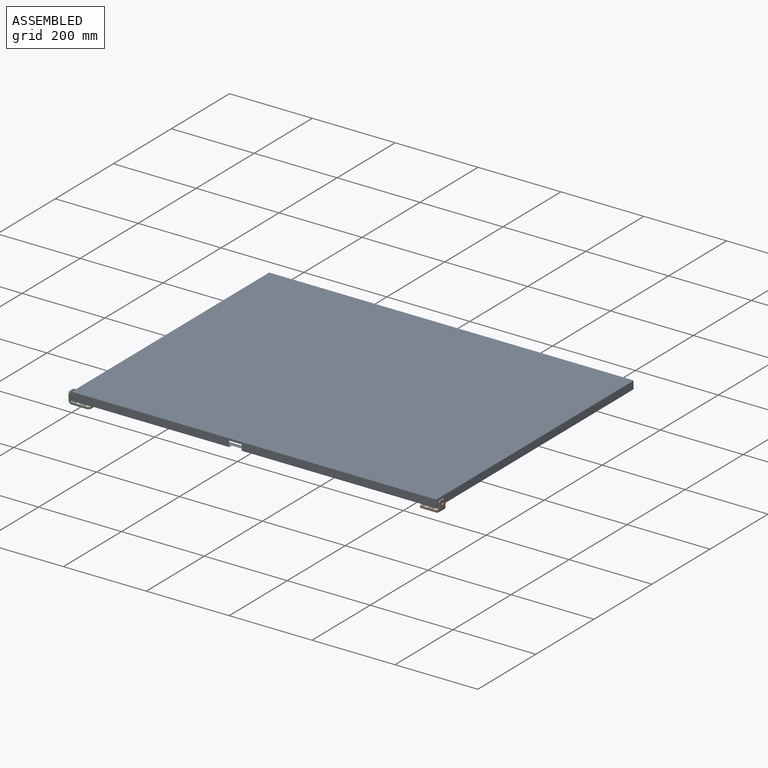
[diagram: assembled view]
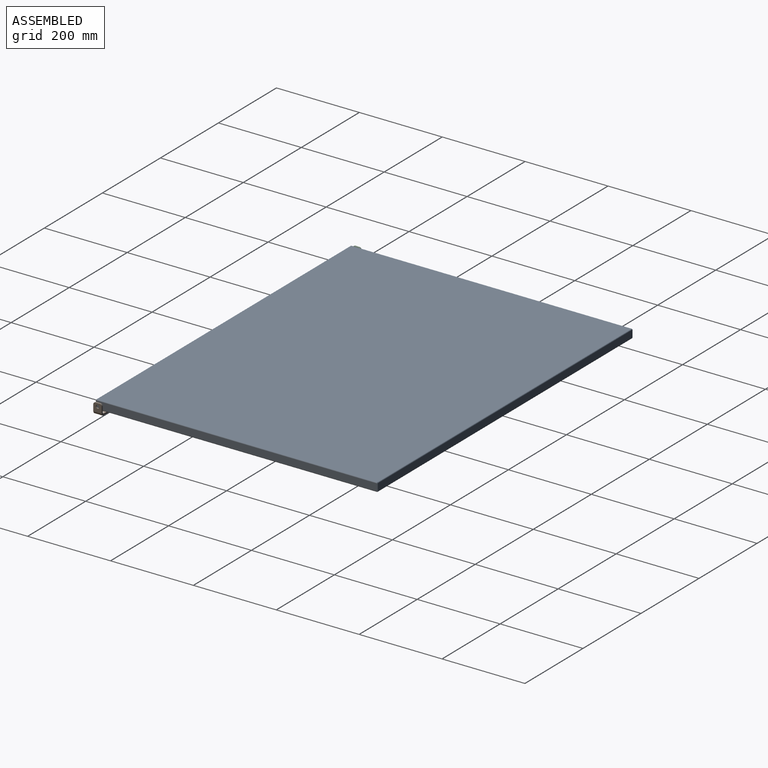
[diagram: assembled view, second angle]
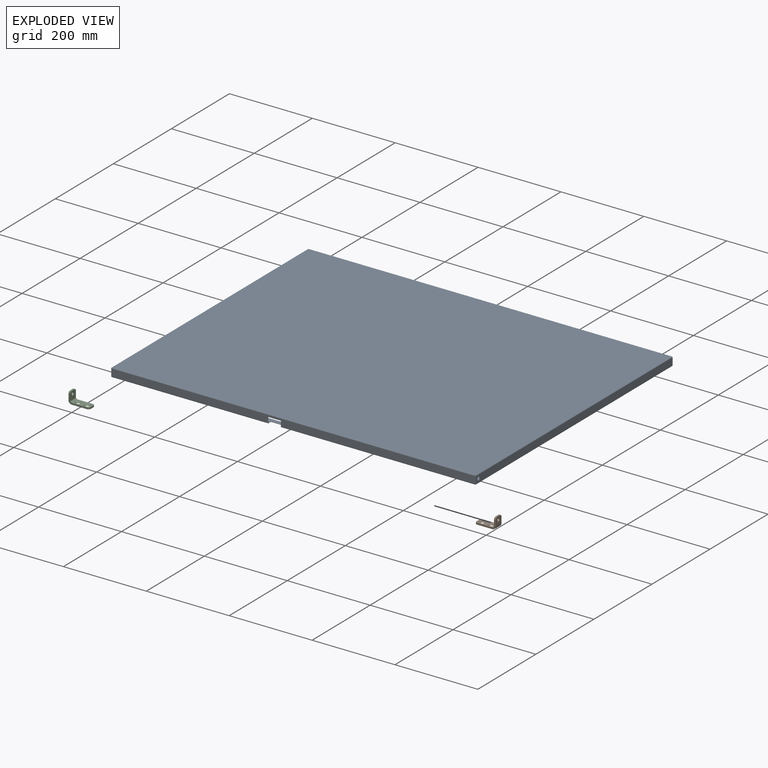
[diagram: exploded view]
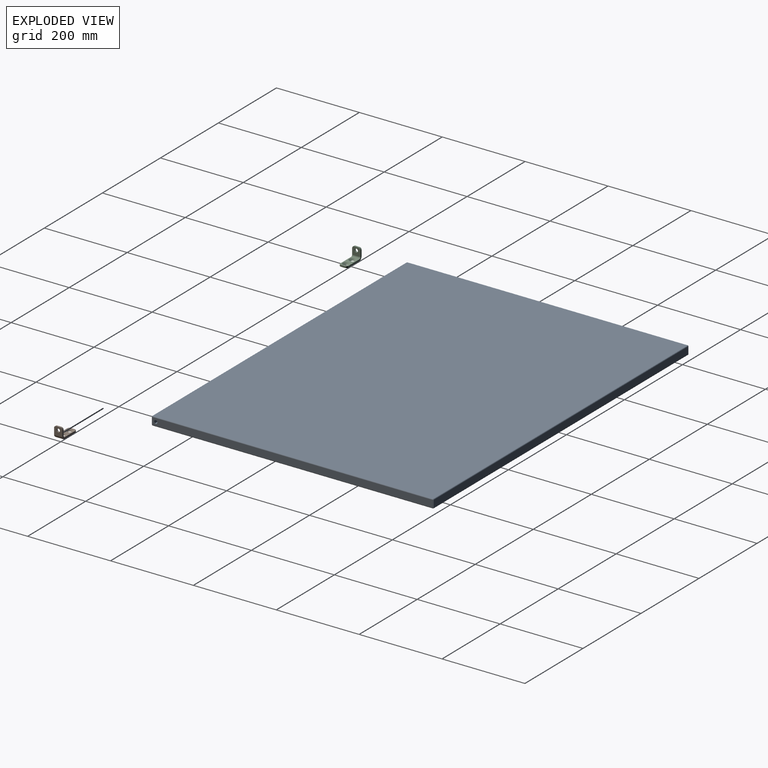
[diagram: exploded view, second angle]
ASSEMBLY  parts=3 mates=2
PART A: 98 faces, bbox 880x680x20.9 mm
  f0: plane 876.2x676.2mm, normal (0,0,-1), area 592486.4mm2, adj f2,f3,f4,f5,f26,f53,f75,f97
  f1: plane 876.2x676.2mm, normal (0,0,1), area 592486.4mm2, adj f2,f3,f4,f5,f25,f52,f74,f96
  f2: plane 0.9x0.14mm, normal (-0.71,0.71,0), area 0.2mm2, adj f0,f1,f24,f94
  f3: plane 0.9x0.14mm, normal (0.71,0.71,0), area 0.2mm2, adj f0,f1,f23,f72
  f4: plane 0.9x0.14mm, normal (0.71,-0.71,0), area 0.2mm2, adj f0,f1,f50,f73
  f5: plane 0.9x0.14mm, normal (-0.71,-0.71,0), area 0.2mm2, adj f0,f1,f51,f95
  f6: plane 30x0.9mm, normal (-1,0,0), area 27mm2, adj f7,f12,f13,f14
  f7: plane 30x30mm, normal (0.71,-0.71,0), area 38.2mm2, adj f6,f8,f13,f14
  f8: plane 779.72x0.9mm, normal (0,-1,0), area 701.7mm2, adj f7,f9,f13,f14
  f9: plane 30x30mm, normal (-0.71,-0.71,0), area 38.2mm2, adj f8,f10,f13,f14
  f10: plane 30x0.9mm, normal (1,0,0), area 27mm2, adj f9,f11,f13,f14
  f11: plane 18.1x18.1mm, normal (0.71,-0.71,0), area 23mm2, adj f10,f13,f14,f15
  f12: plane 18.1x18.1mm, normal (-0.71,-0.71,0), area 23mm2, adj f6,f13,f14,f16
  f13: plane 875.92x48.1mm, normal (0,0,1), area 16426.5mm2, adj f6,f7,f8,f9,f10,f11,f12,f18
  f14: plane 875.92x48.1mm, normal (0,0,-1), area 16426.5mm2, adj f6,f7,f8,f9,f10,f11,f12,f17
  f15: bspline ~1.9x1.9mm, area 2.3mm2, adj f11,f17,f18,f19
  f16: bspline ~1.9x1.9mm, area 2.3mm2, adj f12,f17,f18,f20
  f17: cylinder r=1.9mm len=877.8mm, axis (1,0,0), area 2617.8mm2, adj f14,f15,f16,f22
  f18: cylinder r=1mm len=877.8mm, axis (1,0,0), area 1377.8mm2, adj f13,f15,f16,f21
  f19: plane 17.1x0.9mm, normal (1,0,0), area 15.4mm2, adj f15,f21,f22,f23
  f20: plane 17.1x0.9mm, normal (-1,0,0), area 15.4mm2, adj f16,f21,f22,f24
  f21: plane 877.8x17.1mm, normal (0,-1,0), area 15010.4mm2, adj f18,f19,f20,f26
  f22: plane 877.8x17.1mm, normal (0,1,0), area 15010.4mm2, adj f17,f19,f20,f25
  f23: bspline ~1.9x1.9mm, area 2.3mm2, adj f3,f19,f25,f26
  f24: bspline ~1.9x1.9mm, area 2.3mm2, adj f2,f20,f25,f26
  f25: cylinder r=1.9mm len=877.8mm, axis (1,0,0), area 2617.8mm2, adj f1,f22,f23,f24
  f26: cylinder r=1mm len=877.8mm, axis (1,0,0), area 1377.8mm2, adj f0,f21,f23,f24
  f27: plane 18.1x18.1mm, normal (0.71,0.71,0), area 23mm2, adj f28,f37,f38,f55
  f28: plane 30x0.9mm, normal (1,0,0), area 27mm2, adj f27,f29,f37,f38
  f29: plane 30x30mm, normal (-0.71,0.71,0), area 38.2mm2, adj f28,f30,f37,f38
  f30: plane 779.72x0.9mm, normal (0,1,0), area 701.7mm2, adj f29,f31,f37,f38
  f31: plane 30x30mm, normal (0.71,0.71,0), area 38.2mm2, adj f30,f32,f37,f38
  f32: plane 30x0.9mm, normal (-1,0,0), area 27mm2, adj f31,f33,f37,f38
  f33: plane 18.1x18.1mm, normal (-0.71,0.71,0), area 23mm2, adj f32,f37,f38,f39
  f34: plane 8.1x0.9mm, normal (1,0,0), area 7.3mm2, adj f35,f37,f38,f40
  f35: plane 31x0.9mm, normal (0,-1,0), area 27.9mm2, adj f34,f36,f37,f38
  f36: plane 8.1x0.9mm, normal (-1,0,0), area 7.3mm2, adj f35,f37,f38,f54
  f37: plane 875.92x48.1mm, normal (0,0,1), area 16175.4mm2, adj f27,f28,f29,f30,f31,f32,f33,f34
  f38: plane 875.92x48.1mm, normal (0,0,-1), area 16175.4mm2, adj f27,f28,f29,f30,f31,f32,f33,f34
  f39: bspline ~1.9x1.9mm, area 2.3mm2, adj f33,f41,f42,f44
  f40: plane 1.9x1.9mm, normal (1,0,0), area 2mm2, adj f34,f41,f42,f43
  f41: cylinder r=1.9mm len=377.9mm, axis (-1,0,0), area 1126.8mm2, adj f38,f39,f40,f49
  f42: cylinder r=1mm len=377.9mm, axis (-1,0,0), area 593.1mm2, adj f37,f39,f40,f48
  f43: plane 12.77x0.9mm, normal (1,0,0), area 11.5mm2, adj f40,f47,f48,f49
  f44: plane 17.1x0.9mm, normal (-1,0,0), area 15.4mm2, adj f39,f48,f49,f51
  f45: plane 17.1x0.9mm, normal (1,0,0), area 15.4mm2, adj f48,f49,f50,f55
  f46: plane 12.77x0.9mm, normal (-1,0,0), area 11.5mm2, adj f47,f48,f49,f54
  f47: plane 31x0.9mm, normal (0,0,-1), area 27.9mm2, adj f43,f46,f48,f49
  f48: plane 877.8x17.1mm, normal (0,1,0), area 14614.7mm2, adj f42,f43,f44,f45,f46,f47,f53,f57
  f49: plane 877.8x17.1mm, normal (0,-1,0), area 14614.7mm2, adj f41,f43,f44,f45,f46,f47,f52,f56
  f50: bspline ~1.9x1.9mm, area 2.3mm2, adj f4,f45,f52,f53
  f51: bspline ~1.9x1.9mm, area 2.3mm2, adj f5,f44,f52,f53
  f52: cylinder r=1.9mm len=877.8mm, axis (1,0,0), area 2617.8mm2, adj f1,f49,f50,f51
  f53: cylinder r=1mm len=877.8mm, axis (1,0,0), area 1377.8mm2, adj f0,f48,f50,f51
  f54: plane 1.9x1.9mm, normal (-1,0,0), area 2mm2, adj f36,f46,f56,f57
  f55: bspline ~1.9x1.9mm, area 2.3mm2, adj f27,f45,f56,f57
  f56: cylinder r=1.9mm len=468.9mm, axis (-1,0,0), area 1398.4mm2, adj f38,f49,f54,f55
  f57: cylinder r=1mm len=468.9mm, axis (-1,0,0), area 736mm2, adj f37,f48,f54,f55
  f58: plane 639.72x0.9mm, normal (-1,0,0), area 575.7mm2, adj f59,f60,f61,f62
  f59: plane 18.1x18.1mm, normal (-0.71,-0.71,0), area 23mm2, adj f58,f61,f62,f63
  f60: plane 18.1x18.1mm, normal (-0.71,0.71,0), area 23mm2, adj f58,f61,f62,f64
  f61: plane 675.92x18.1mm, normal (0,0,1), area 11906.5mm2, adj f58,f59,f60,f66
  f62: plane 675.92x18.1mm, normal (0,0,-1), area 11906.5mm2, adj f58,f59,f60,f65
  f63: bspline ~1.9x1.9mm, area 2.3mm2, adj f59,f65,f66,f67
  f64: bspline ~1.9x1.9mm, area 2.3mm2, adj f60,f65,f66,f69
  f65: cylinder r=1.9mm len=677.8mm, axis (0,-1,0), area 2020.9mm2, adj f62,f63,f64,f71
  f66: cylinder r=1mm len=677.8mm, axis (0,-1,0), area 1063.6mm2, adj f61,f63,f64,f70
  f67: plane 17.1x0.9mm, normal (0,-1,0), area 15.4mm2, adj f63,f70,f71,f73
  f68: cylinder r=4mm len=8mm, axis (-1,0,0), area 22.6mm2, adj f70,f71
  f69: plane 17.1x0.9mm, normal (0,1,0), area 15.4mm2, adj f64,f70,f71,f72
  f70: plane 677.8x17.1mm, normal (-1,0,0), area 11540.1mm2, adj f66,f67,f68,f69,f75
  f71: plane 677.8x17.1mm, normal (1,0,0), area 11540.1mm2, adj f65,f67,f68,f69,f74
  f72: bspline ~1.9x1.9mm, area 2.3mm2, adj f3,f69,f74,f75
  f73: bspline ~1.9x1.9mm, area 2.3mm2, adj f4,f67,f74,f75
  f74: cylinder r=1.9mm len=677.8mm, axis (0,1,0), area 2020.9mm2, adj f1,f71,f72,f73
  f75: cylinder r=1mm len=677.8mm, axis (0,1,0), area 1063.6mm2, adj f0,f70,f72,f73
  f76: plane 35x0.9mm, normal (1,0,0), area 31.5mm2, adj f77,f82,f83,f84
  f77: plane 3x0.9mm, normal (0,-1,0), area 2.7mm2, adj f76,f78,f83,f84
  f78: plane 35x0.9mm, normal (-1,0,0), area 31.5mm2, adj f77,f82,f83,f84
  f79: plane 639.72x0.9mm, normal (1,0,0), area 575.7mm2, adj f80,f81,f83,f84
  f80: plane 18.1x18.1mm, normal (0.71,0.71,0), area 23mm2, adj f79,f83,f84,f85
  f81: plane 18.1x18.1mm, normal (0.71,-0.71,0), area 23mm2, adj f79,f83,f84,f86
  f82: plane 3x0.9mm, normal (0,1,0), area 2.7mm2, adj f76,f78,f83,f84
  f83: plane 675.92x18.1mm, normal (0,0,1), area 11801.5mm2, adj f76,f77,f78,f79,f80,f81,f82,f88
  f84: plane 675.92x18.1mm, normal (0,0,-1), area 11801.5mm2, adj f76,f77,f78,f79,f80,f81,f82,f87
  f85: bspline ~1.9x1.9mm, area 2.3mm2, adj f80,f87,f88,f89
  f86: bspline ~1.9x1.9mm, area 2.3mm2, adj f81,f87,f88,f91
  f87: cylinder r=1.9mm len=677.8mm, axis (0,1,0), area 2020.9mm2, adj f84,f85,f86,f93
  f88: cylinder r=1mm len=677.8mm, axis (0,1,0), area 1063.6mm2, adj f83,f85,f86,f92
  f89: plane 17.1x0.9mm, normal (0,1,0), area 15.4mm2, adj f85,f92,f93,f94
  f90: cylinder r=4mm len=8mm, axis (1,0,0), area 22.6mm2, adj f92,f93
  f91: plane 17.1x0.9mm, normal (0,-1,0), area 15.4mm2, adj f86,f92,f93,f95
  f92: plane 677.8x17.1mm, normal (1,0,0), area 11540.1mm2, adj f88,f89,f90,f91,f97
  f93: plane 677.8x17.1mm, normal (-1,0,0), area 11540.1mm2, adj f87,f89,f90,f91,f96
  f94: bspline ~1.9x1.9mm, area 2.3mm2, adj f2,f89,f96,f97
  f95: bspline ~1.9x1.9mm, area 2.3mm2, adj f5,f91,f96,f97
  f96: cylinder r=1.9mm len=677.8mm, axis (0,1,0), area 2020.9mm2, adj f1,f93,f94,f95
  f97: cylinder r=1mm len=677.8mm, axis (0,1,0), area 1063.6mm2, adj f0,f92,f94,f95
PART B: 21 faces, bbox 50x20x27 mm
  f0: plane 14x4mm, normal (0,-1,0), area 56mm2, adj f4,f5,f7,f16
  f1: plane 10x4mm, normal (0,0,1), area 40mm2, adj f4,f5,f6,f7
  f2: cylinder r=4.1mm len=8.2mm, axis (1,0,0), area 103mm2, adj f4,f5
  f3: plane 14x4mm, normal (0,1,0), area 56mm2, adj f4,f5,f6,f15
  f4: plane 20x19mm, normal (-1,0,0), area 316.5mm2, adj f0,f1,f2,f3,f6,f7,f18
  f5: plane 20x19mm, normal (1,0,0), area 316.5mm2, adj f0,f1,f2,f3,f6,f7,f17
  f6: cylinder r=5mm len=5mm, axis (-1,0,0), area 31.4mm2, adj f1,f3,f4,f5
  f7: cylinder r=5mm len=5mm, axis (1,0,0), area 31.4mm2, adj f0,f1,f4,f5
  f8: plane 10x4mm, normal (-1,0,0), area 40mm2, adj f11,f12,f13,f14
  f9: plane 37x4mm, normal (0,-1,0), area 148mm2, adj f11,f12,f13,f16
  f10: plane 37x4mm, normal (0,1,0), area 148mm2, adj f11,f12,f14,f15
  f11: plane 42x20mm, normal (0,0,1), area 427.1mm2, adj f8,f9,f10,f13,f14,f18,f19,f20
  f12: plane 42x20mm, normal (0,0,-1), area 728.7mm2, adj f8,f9,f10,f13,f14,f17,f19,f20
  f13: cylinder r=5mm len=5mm, axis (0,0,1), area 31.4mm2, adj f8,f9,f11,f12
  f14: cylinder r=5mm len=5mm, axis (0,0,1), area 31.4mm2, adj f8,f10,f11,f12
  f15: plane 8x8mm, normal (0,1,0), area 37.7mm2, adj f3,f10,f17,f18
  f16: plane 8x8mm, normal (0,-1,0), area 37.7mm2, adj f0,f9,f17,f18
  f17: cylinder r=8mm len=20mm, axis (0,1,0), area 251.3mm2, adj f5,f12,f15,f16
  f18: cylinder r=4mm len=20mm, axis (0,1,0), area 125.7mm2, adj f4,f11,f15,f16
  f19: cone r=4mm half-angle=45deg, axis (0,0,1), area 213.3mm2, adj f11,f12
  f20: cone r=4mm half-angle=45deg, axis (0,0,1), area 213.3mm2, adj f11,f12
PART C: 21 faces, bbox 50x20x27 mm
  f0: plane 14x4mm, normal (0,1,0), area 56mm2, adj f4,f5,f6,f15
  f1: plane 10x4mm, normal (0,0,1), area 40mm2, adj f4,f5,f6,f7
  f2: cylinder r=4.1mm len=8.2mm, axis (-1,0,0), area 103mm2, adj f4,f5
  f3: plane 14x4mm, normal (0,-1,0), area 56mm2, adj f4,f5,f7,f16
  f4: plane 20x19mm, normal (1,0,0), area 316.5mm2, adj f0,f1,f2,f3,f6,f7,f18
  f5: plane 20x19mm, normal (-1,0,0), area 316.5mm2, adj f0,f1,f2,f3,f6,f7,f17
  f6: cylinder r=5mm len=5mm, axis (1,0,0), area 31.4mm2, adj f0,f1,f4,f5
  f7: cylinder r=5mm len=5mm, axis (-1,0,0), area 31.4mm2, adj f1,f3,f4,f5
  f8: plane 10x4mm, normal (1,0,0), area 40mm2, adj f11,f12,f13,f14
  f9: plane 37x4mm, normal (0,1,0), area 148mm2, adj f11,f12,f14,f15
  f10: plane 37x4mm, normal (0,-1,0), area 148mm2, adj f11,f12,f13,f16
  f11: plane 42x20mm, normal (0,0,1), area 427.1mm2, adj f8,f9,f10,f13,f14,f18,f19,f20
  f12: plane 42x20mm, normal (0,0,-1), area 728.7mm2, adj f8,f9,f10,f13,f14,f17,f19,f20
  f13: cylinder r=5mm len=5mm, axis (0,0,1), area 31.4mm2, adj f8,f10,f11,f12
  f14: cylinder r=5mm len=5mm, axis (0,0,1), area 31.4mm2, adj f8,f9,f11,f12
  f15: plane 8x8mm, normal (0,1,0), area 37.7mm2, adj f0,f9,f17,f18
  f16: plane 8x8mm, normal (0,-1,0), area 37.7mm2, adj f3,f10,f17,f18
  f17: cylinder r=8mm len=20mm, axis (0,1,0), area 251.3mm2, adj f5,f12,f15,f16
  f18: cylinder r=4mm len=20mm, axis (0,1,0), area 125.7mm2, adj f4,f11,f15,f16
  f19: cone r=4mm half-angle=45deg, axis (0,0,1), area 213.3mm2, adj f11,f12
  f20: cone r=4mm half-angle=45deg, axis (0,0,1), area 213.3mm2, adj f11,f12
PLACE A rot(axis=(1,0,0),0deg) t=(0,0,1)mm
PLACE B rot(axis=(-1,0,0),0deg) t=(0,0,-0.55)mm
PLACE C rot(axis=(1,0.05,0),0deg) t=(0,0,-0.53)mm
MATE revolute B.f2 <-> A.f68  axis (-1,0,0) through (884,10,-8.55)mm
MATE revolute C.f2 <-> A.f90  axis (1,0,0) through (-4,10,-8.55)mm
